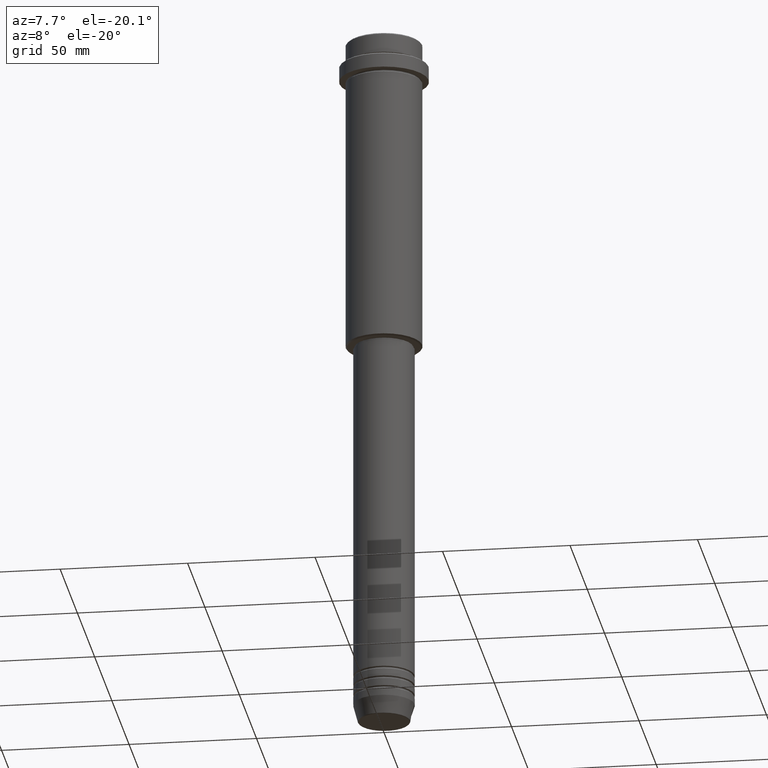
[diagram: clean part render]
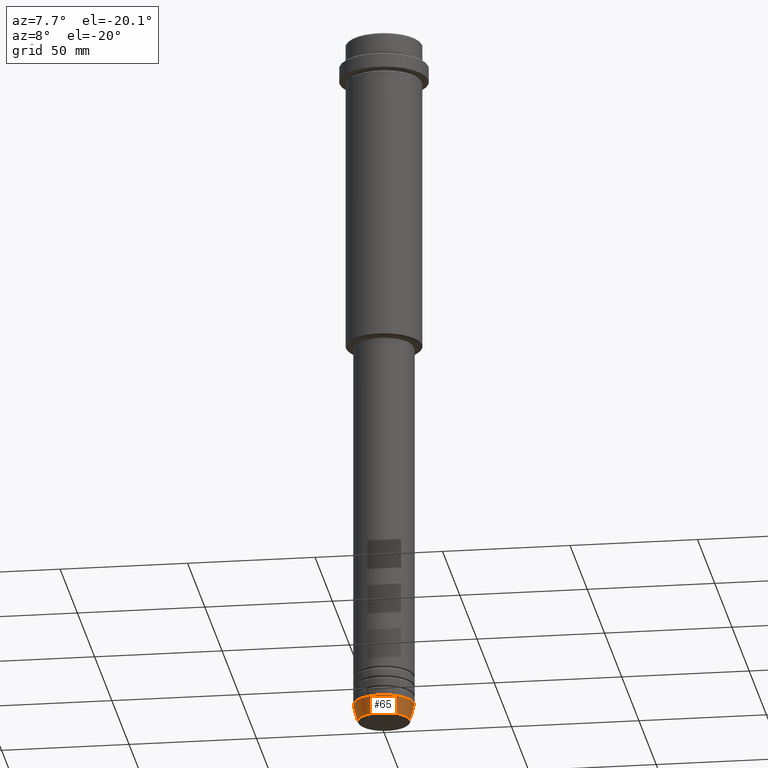
[diagram: same view with one face highlighted and labeled with its STEP entity id]
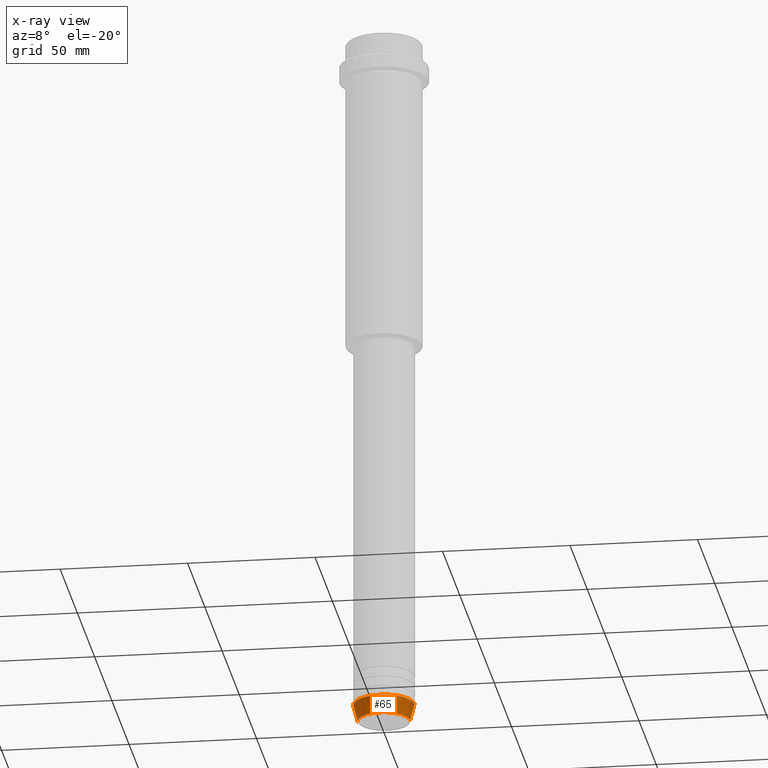
[diagram: x-ray of the same camera — body ghosted, the highlighted face saturated]
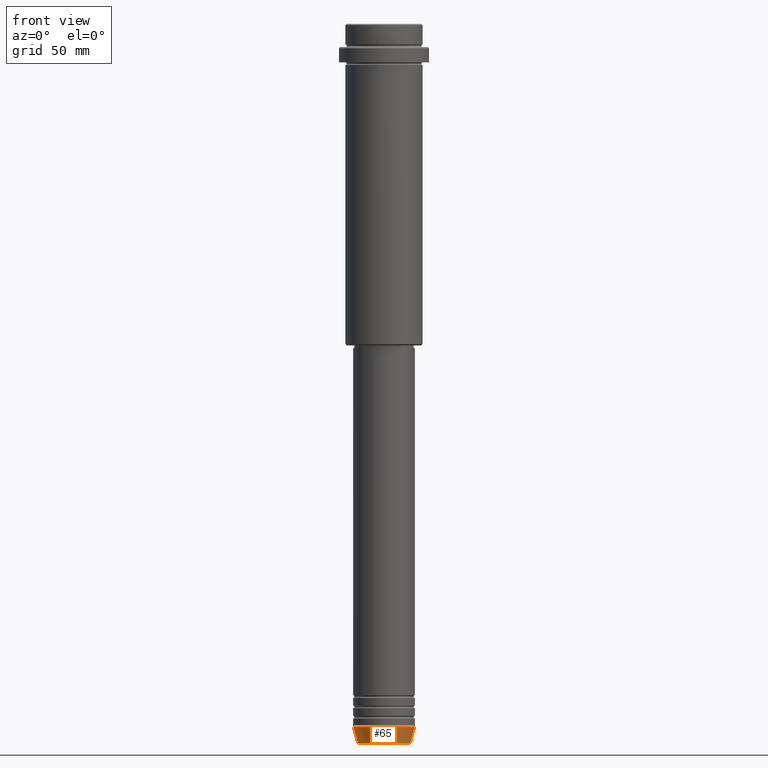
[diagram: same view with one face highlighted and labeled with its STEP entity id]
A machine part, auxiliary view. The second image highlights one B-rep face of the part: STEP entity #65.
The next image is the same camera in x-ray: the body ghosted, the highlighted face saturated — about 0% of this face is hidden behind the body in this view.
A second angle (front view) of the same face is appended — the face is thin or edge-on in the first view.
In plain terms, the highlighted conical surface has half-angle 15 deg.
Its self-contained STEP definition (entity closure, byte-faithful):
#9 = AXIS2_PLACEMENT_3D ( 'NONE', #136, #793, #1171 ) ;
#31 = CIRCLE ( 'NONE', #9, 12.00000000000000000 ) ;
#58 = CARTESIAN_POINT ( 'NONE',  ( 12.00000000000000000, 0.000000000000000000, -273.0000000000000000 ) ) ;
#65 = ADVANCED_FACE ( 'NONE', ( #93 ), #874, .T. ) ;
#93 = FACE_OUTER_BOUND ( 'NONE', #114, .T. ) ;
#98 = EDGE_CURVE ( 'NONE', #588, #297, #117, .T. ) ;
#114 = EDGE_LOOP ( 'NONE', ( #821, #1161, #982, #1003 ) ) ;
#117 = LINE ( 'NONE', #665, #348 ) ;
#136 = CARTESIAN_POINT ( 'NONE',  ( 0.000000000000000000, 0.000000000000000000, -273.0000000000000000 ) ) ;
#143 = EDGE_CURVE ( 'NONE', #297, #1211, #31, .T. ) ;
#200 = DIRECTION ( 'NONE',  ( -0.000000000000000000, -0.000000000000000000, 1.000000000000000000 ) ) ;
#212 = CARTESIAN_POINT ( 'NONE',  ( 0.000000000000000000, 0.000000000000000000, -273.0000000000000000 ) ) ;
#273 = CARTESIAN_POINT ( 'NONE',  ( 0.000000000000000000, 0.000000000000000000, -279.6294095225512706 ) ) ;
#297 = VERTEX_POINT ( 'NONE', #1370 ) ;
#348 = VECTOR ( 'NONE', #1308, 1000.000000000000000 ) ;
#385 = AXIS2_PLACEMENT_3D ( 'NONE', #212, #200, #1204 ) ;
#407 = CARTESIAN_POINT ( 'NONE',  ( 12.00000000000000000, 0.000000000000000000, -273.0000000000000000 ) ) ;
#527 = VERTEX_POINT ( 'NONE', #936 ) ;
#588 = VERTEX_POINT ( 'NONE', #1345 ) ;
#652 = EDGE_CURVE ( 'NONE', #588, #527, #697, .T. ) ;
#665 = CARTESIAN_POINT ( 'NONE',  ( -12.00000000000000000, 1.469576158976823947E-15, -273.0000000000000000 ) ) ;
#697 = CIRCLE ( 'NONE', #943, 10.22365507213719127 ) ;
#710 = DIRECTION ( 'NONE',  ( 1.000000000000000000, 0.000000000000000000, 0.000000000000000000 ) ) ;
#793 = DIRECTION ( 'NONE',  ( -0.000000000000000000, -0.000000000000000000, 1.000000000000000000 ) ) ;
#821 = ORIENTED_EDGE ( 'NONE', *, *, #98, .F. ) ;
#822 = LINE ( 'NONE', #407, #1201 ) ;
#870 = EDGE_CURVE ( 'NONE', #527, #1211, #822, .T. ) ;
#874 = CONICAL_SURFACE ( 'NONE', #385, 12.00000000000000000, 0.2617993877991500740 ) ;
#936 = CARTESIAN_POINT ( 'NONE',  ( 10.22365507213719127, 0.000000000000000000, -279.6294095225512706 ) ) ;
#943 = AXIS2_PLACEMENT_3D ( 'NONE', #273, #1253, #710 ) ;
#982 = ORIENTED_EDGE ( 'NONE', *, *, #870, .T. ) ;
#1003 = ORIENTED_EDGE ( 'NONE', *, *, #143, .F. ) ;
#1161 = ORIENTED_EDGE ( 'NONE', *, *, #652, .T. ) ;
#1171 = DIRECTION ( 'NONE',  ( 1.000000000000000000, 0.000000000000000000, 0.000000000000000000 ) ) ;
#1201 = VECTOR ( 'NONE', #1294, 1000.000000000000000 ) ;
#1204 = DIRECTION ( 'NONE',  ( 1.000000000000000000, 0.000000000000000000, 0.000000000000000000 ) ) ;
#1211 = VERTEX_POINT ( 'NONE', #58 ) ;
#1253 = DIRECTION ( 'NONE',  ( -0.000000000000000000, -0.000000000000000000, 1.000000000000000000 ) ) ;
#1294 = DIRECTION ( 'NONE',  ( 0.2588190451025213501, 0.000000000000000000, 0.9659258262890680902 ) ) ;
#1308 = DIRECTION ( 'NONE',  ( -0.2588190451025213501, 3.169619151431772337E-17, 0.9659258262890680902 ) ) ;
#1345 = CARTESIAN_POINT ( 'NONE',  ( -10.22365507213719127, 1.360806402472382744E-15, -279.6294095225512706 ) ) ;
#1370 = CARTESIAN_POINT ( 'NONE',  ( -12.00000000000000000, 1.469576158976823947E-15, -273.0000000000000000 ) ) ;